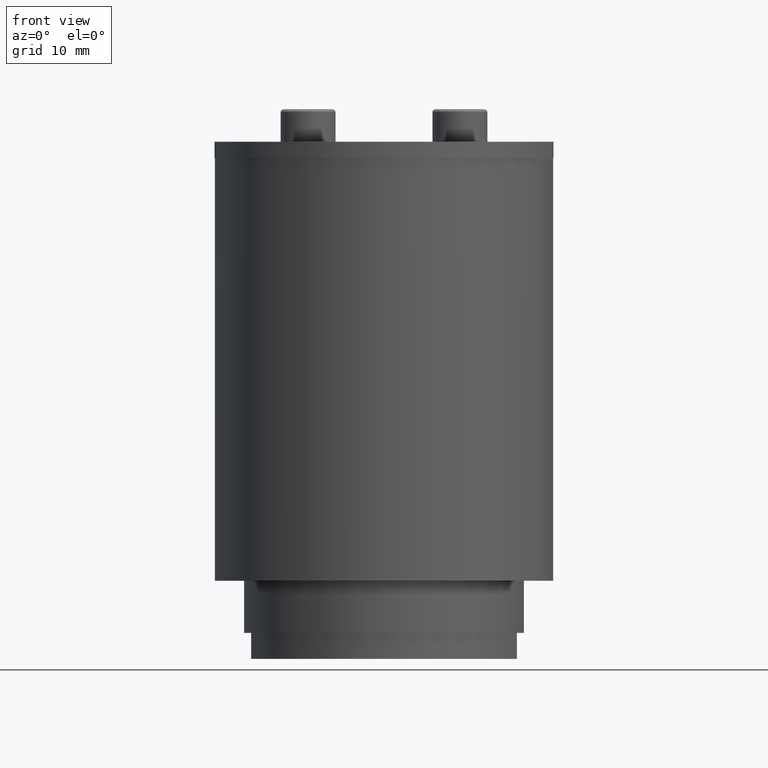
[diagram: clean part render]
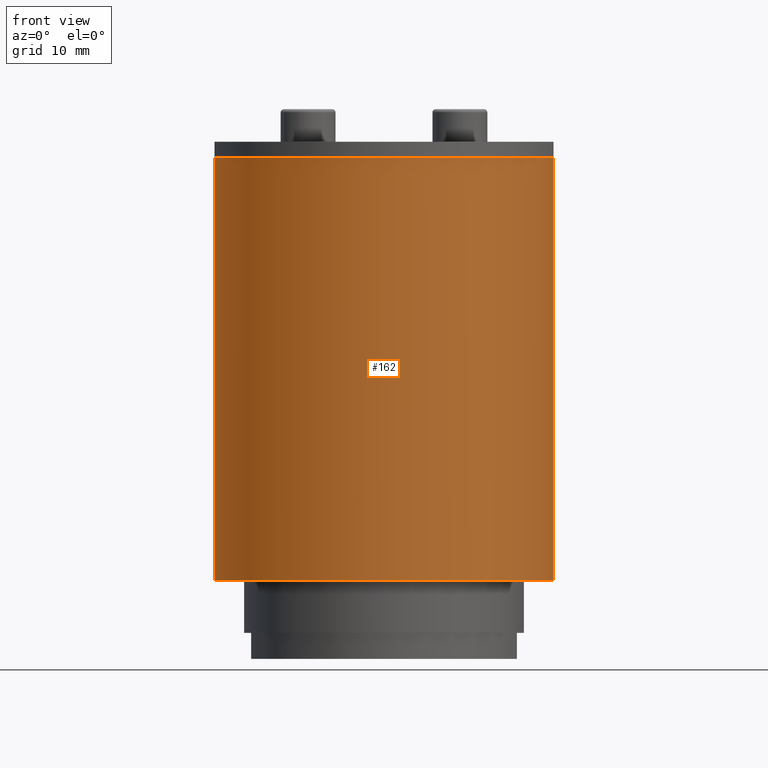
[diagram: same view with one face highlighted and labeled with its STEP entity id]
A machine part, front view. The second image highlights one B-rep face of the part: STEP entity #162.
In plain terms, the highlighted cylindrical surface (bore or boss wall) has radius 26 mm, axis along (0, 0, -1).
Its self-contained STEP definition (entity closure, byte-faithful):
#135=CARTESIAN_POINT('',(0.0,0.0,0.0));
#136=DIRECTION('',(0.0,0.0,-1.0));
#137=DIRECTION('',(-1.0,0.0,0.0));
#138=AXIS2_PLACEMENT_3D('',#135,#136,#137);
#139=CYLINDRICAL_SURFACE('',#138,26.0);
#140=CARTESIAN_POINT('',(26.0,3.184082E-015,-65.0));
#141=VERTEX_POINT('',#140);
#142=CARTESIAN_POINT('',(0.0,0.0,-65.0));
#143=DIRECTION('',(0.0,0.0,-1.0));
#144=DIRECTION('',(-1.0,0.0,0.0));
#145=AXIS2_PLACEMENT_3D('',#142,#143,#144);
#146=CIRCLE('',#145,26.0);
#147=EDGE_CURVE('',#141,#141,#146,.T.);
#148=ORIENTED_EDGE('',*,*,#147,.F.);
#149=EDGE_LOOP('',(#148));
#150=FACE_OUTER_BOUND('',#149,.T.);
#151=CARTESIAN_POINT('',(26.0,3.184082E-015,0.0));
#152=VERTEX_POINT('',#151);
#153=CARTESIAN_POINT('',(0.0,0.0,0.0));
#154=DIRECTION('',(0.0,0.0,-1.0));
#155=DIRECTION('',(-1.0,0.0,0.0));
#156=AXIS2_PLACEMENT_3D('',#153,#154,#155);
#157=CIRCLE('',#156,26.0);
#158=EDGE_CURVE('',#152,#152,#157,.T.);
#159=ORIENTED_EDGE('',*,*,#158,.T.);
#160=EDGE_LOOP('',(#159));
#161=FACE_BOUND('',#160,.T.);
#162=ADVANCED_FACE('',(#150,#161),#139,.T.);